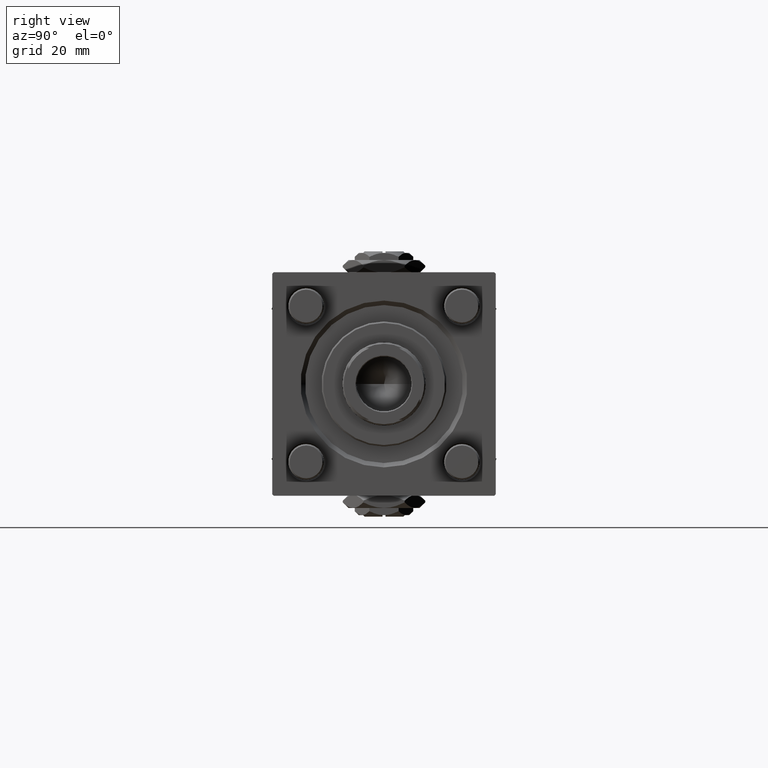
[diagram: clean part render]
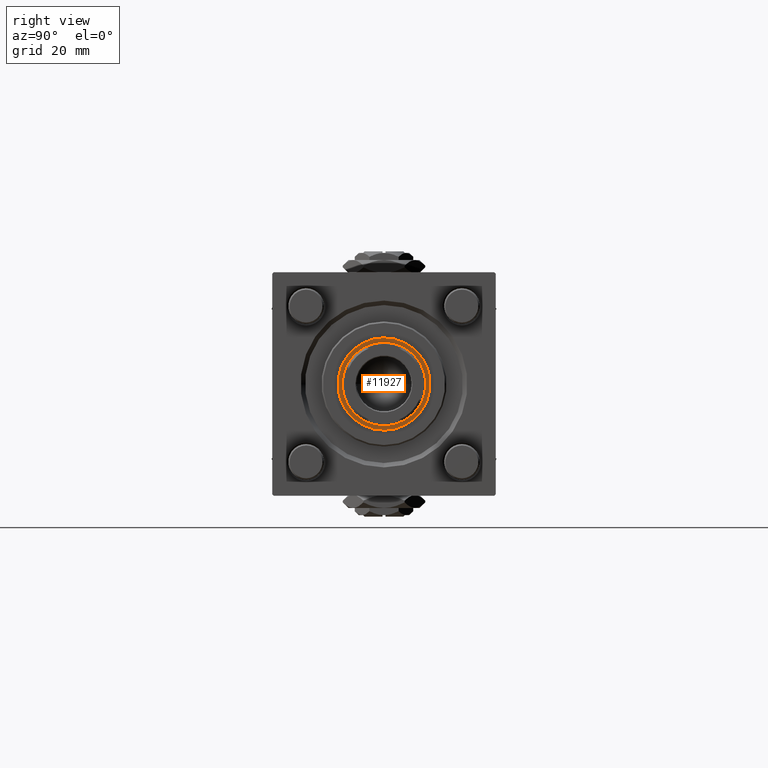
[diagram: same view with one face highlighted and labeled with its STEP entity id]
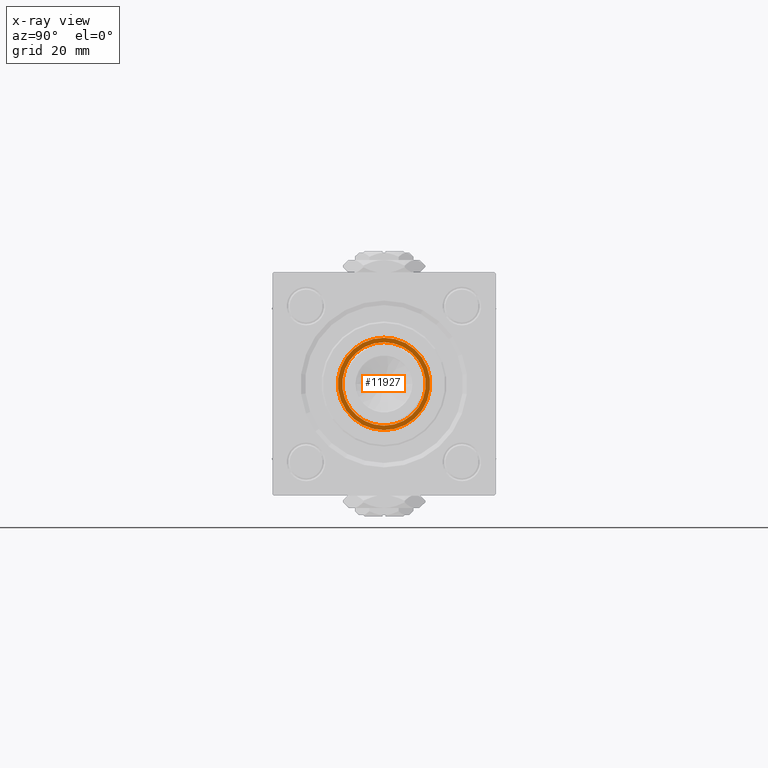
[diagram: x-ray of the same camera — body ghosted, the highlighted face saturated]
A machine part, right view. The second image highlights one B-rep face of the part: STEP entity #11927.
The next image is the same camera in x-ray: the body ghosted, the highlighted face saturated — about 0% of this face is hidden behind the body in this view.
In plain terms, the highlighted planar face has unit normal (1, 0, 0).
Its self-contained STEP definition (entity closure, byte-faithful):
#3682 = CIRCLE ( 'NONE', #19849, 15.50000000000000000 ) ;
#4829 = EDGE_CURVE ( 'NONE', #11932, #55154, #6542, .T. ) ;
#6413 = DIRECTION ( 'NONE',  ( 1.000000000000000000, 0.000000000000000000, 0.000000000000000000 ) ) ;
#6542 = CIRCLE ( 'NONE', #14119, 15.50000000000000000 ) ;
#8802 = EDGE_CURVE ( 'NONE', #55154, #11932, #3682, .T. ) ;
#9482 = DIRECTION ( 'NONE',  ( 0.000000000000000000, 0.000000000000000000, 1.000000000000000000 ) ) ;
#10850 = CIRCLE ( 'NONE', #38308, 14.00000000000000178 ) ;
#11927 = ADVANCED_FACE ( 'NONE', ( #22557, #40645 ), #58769, .T. ) ;
#11932 = VERTEX_POINT ( 'NONE', #45399 ) ;
#14119 = AXIS2_PLACEMENT_3D ( 'NONE', #50143, #27593, #45680 ) ;
#14234 = DIRECTION ( 'NONE',  ( 1.000000000000000000, 0.000000000000000000, -0.000000000000000000 ) ) ;
#15360 = AXIS2_PLACEMENT_3D ( 'NONE', #33459, #47101, #6413 ) ;
#16281 = CIRCLE ( 'NONE', #15360, 14.00000000000000178 ) ;
#19121 = VERTEX_POINT ( 'NONE', #46706 ) ;
#19849 = AXIS2_PLACEMENT_3D ( 'NONE', #30312, #44541, #49298 ) ;
#20876 = AXIS2_PLACEMENT_3D ( 'NONE', #49859, #9482, #14234 ) ;
#21736 = EDGE_CURVE ( 'NONE', #19121, #46080, #16281, .T. ) ;
#21961 = ORIENTED_EDGE ( 'NONE', *, *, #4829, .T. ) ;
#22557 = FACE_OUTER_BOUND ( 'NONE', #31480, .T. ) ;
#27593 = DIRECTION ( 'NONE',  ( 0.000000000000000000, 0.000000000000000000, 1.000000000000000000 ) ) ;
#30312 = CARTESIAN_POINT ( 'NONE',  ( 0.000000000000000000, 0.000000000000000000, 37.19999999999999574 ) ) ;
#30989 = CARTESIAN_POINT ( 'NONE',  ( 0.000000000000000000, 0.000000000000000000, 37.19999999999999574 ) ) ;
#31480 = EDGE_LOOP ( 'NONE', ( #21961, #55385 ) ) ;
#31874 = DIRECTION ( 'NONE',  ( 1.000000000000000000, 0.000000000000000000, 0.000000000000000000 ) ) ;
#33459 = CARTESIAN_POINT ( 'NONE',  ( 0.000000000000000000, 0.000000000000000000, 37.19999999999999574 ) ) ;
#34819 = EDGE_CURVE ( 'NONE', #46080, #19121, #10850, .T. ) ;
#36463 = CARTESIAN_POINT ( 'NONE',  ( -15.50000000000000000, 1.898202538678397557E-15, 37.19999999999999574 ) ) ;
#38308 = AXIS2_PLACEMENT_3D ( 'NONE', #30989, #45218, #31874 ) ;
#40645 = FACE_BOUND ( 'NONE', #45733, .T. ) ;
#42377 = ORIENTED_EDGE ( 'NONE', *, *, #34819, .T. ) ;
#44541 = DIRECTION ( 'NONE',  ( 0.000000000000000000, 0.000000000000000000, 1.000000000000000000 ) ) ;
#45218 = DIRECTION ( 'NONE',  ( -0.000000000000000000, -0.000000000000000000, -1.000000000000000000 ) ) ;
#45399 = CARTESIAN_POINT ( 'NONE',  ( 15.50000000000000000, 0.000000000000000000, 37.19999999999999574 ) ) ;
#45680 = DIRECTION ( 'NONE',  ( 1.000000000000000000, 0.000000000000000000, 0.000000000000000000 ) ) ;
#45733 = EDGE_LOOP ( 'NONE', ( #42377, #49546 ) ) ;
#46080 = VERTEX_POINT ( 'NONE', #48990 ) ;
#46706 = CARTESIAN_POINT ( 'NONE',  ( -14.00000000000000178, 1.714505518806294835E-15, 37.19999999999999574 ) ) ;
#47101 = DIRECTION ( 'NONE',  ( -0.000000000000000000, -0.000000000000000000, -1.000000000000000000 ) ) ;
#48990 = CARTESIAN_POINT ( 'NONE',  ( 14.00000000000000178, 0.000000000000000000, 37.19999999999999574 ) ) ;
#49298 = DIRECTION ( 'NONE',  ( 1.000000000000000000, 0.000000000000000000, 0.000000000000000000 ) ) ;
#49546 = ORIENTED_EDGE ( 'NONE', *, *, #21736, .T. ) ;
#49859 = CARTESIAN_POINT ( 'NONE',  ( 0.000000000000000000, 0.000000000000000000, 37.19999999999999574 ) ) ;
#50143 = CARTESIAN_POINT ( 'NONE',  ( 0.000000000000000000, 0.000000000000000000, 37.19999999999999574 ) ) ;
#55154 = VERTEX_POINT ( 'NONE', #36463 ) ;
#55385 = ORIENTED_EDGE ( 'NONE', *, *, #8802, .T. ) ;
#58769 = PLANE ( 'NONE',  #20876 ) ;